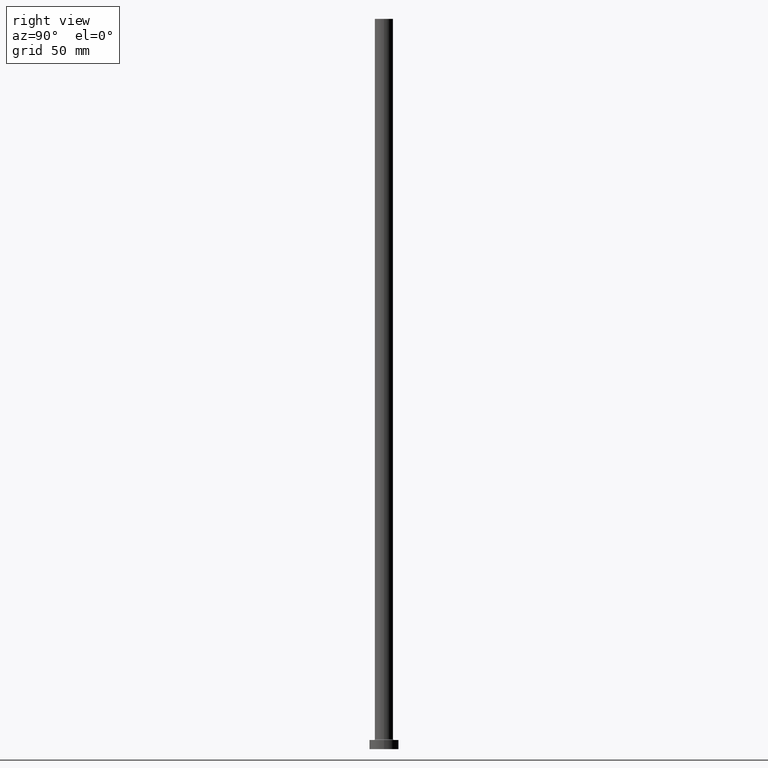
[diagram: clean part render]
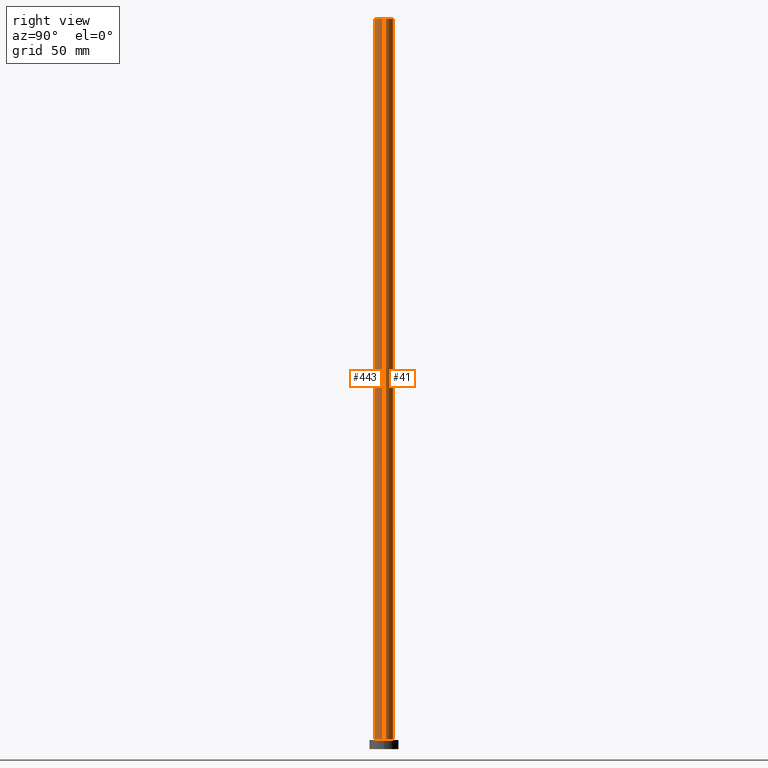
[diagram: same view with one multi-face feature highlighted, each face labeled with its STEP entity id]
A machine part, right view. The highlighted faces form ONE feature: a constant-radius fillet chain: 2 tangent blend faces with common blend radius 5 mm. The faces share edges in the B-rep.
Their STEP definitions:
[1] entity #443 (Cylinder):
#28 = LINE ( 'NONE', #265, #415 ) ;
#30 = CARTESIAN_POINT ( 'NONE',  ( 0.000000000000000000, 0.000000000000000000, 400.0000000000000000 ) ) ;
#37 = DIRECTION ( 'NONE',  ( -0.000000000000000000, -0.000000000000000000, -1.000000000000000000 ) ) ;
#54 = EDGE_CURVE ( 'NONE', #191, #219, #228, .T. ) ;
#64 = CARTESIAN_POINT ( 'NONE',  ( -5.000000000000000000, 0.000000000000000000, 5.500000000000005329 ) ) ;
#72 = VECTOR ( 'NONE', #37, 1000.000000000000000 ) ;
#93 = CARTESIAN_POINT ( 'NONE',  ( -5.000000000000000000, 0.000000000000000000, 400.0000000000000000 ) ) ;
#102 = CARTESIAN_POINT ( 'NONE',  ( 5.000000000000000000, 6.123233995736765296E-16, 5.500000000000005329 ) ) ;
#105 = CYLINDRICAL_SURFACE ( 'NONE', #345, 5.000000000000000000 ) ;
#114 = EDGE_CURVE ( 'NONE', #219, #156, #441, .T. ) ;
#119 = CARTESIAN_POINT ( 'NONE',  ( -5.000000000000000000, 0.000000000000000000, 400.0000000000000000 ) ) ;
#149 = VERTEX_POINT ( 'NONE', #346 ) ;
#151 = EDGE_CURVE ( 'NONE', #149, #156, #28, .T. ) ;
#156 = VERTEX_POINT ( 'NONE', #102 ) ;
#173 = DIRECTION ( 'NONE',  ( 0.000000000000000000, 0.000000000000000000, 1.000000000000000000 ) ) ;
#174 = FACE_OUTER_BOUND ( 'NONE', #285, .T. ) ;
#191 = VERTEX_POINT ( 'NONE', #93 ) ;
#193 = CARTESIAN_POINT ( 'NONE',  ( 0.000000000000000000, 0.000000000000000000, 5.500000000000005329 ) ) ;
#219 = VERTEX_POINT ( 'NONE', #64 ) ;
#228 = LINE ( 'NONE', #119, #72 ) ;
#261 = ORIENTED_EDGE ( 'NONE', *, *, #151, .F. ) ;
#262 = ORIENTED_EDGE ( 'NONE', *, *, #310, .F. ) ;
#265 = CARTESIAN_POINT ( 'NONE',  ( 5.000000000000000000, 6.123233995736765296E-16, 400.0000000000000000 ) ) ;
#267 = DIRECTION ( 'NONE',  ( -0.000000000000000000, -0.000000000000000000, -1.000000000000000000 ) ) ;
#285 = EDGE_LOOP ( 'NONE', ( #261, #262, #358, #404 ) ) ;
#310 = EDGE_CURVE ( 'NONE', #191, #149, #339, .T. ) ;
#315 = DIRECTION ( 'NONE',  ( -1.000000000000000000, 0.000000000000000000, 0.000000000000000000 ) ) ;
#322 = AXIS2_PLACEMENT_3D ( 'NONE', #30, #173, #349 ) ;
#339 = CIRCLE ( 'NONE', #322, 5.000000000000000000 ) ;
#342 = AXIS2_PLACEMENT_3D ( 'NONE', #193, #445, #378 ) ;
#345 = AXIS2_PLACEMENT_3D ( 'NONE', #424, #430, #315 ) ;
#346 = CARTESIAN_POINT ( 'NONE',  ( 5.000000000000000000, 6.123233995736765296E-16, 400.0000000000000000 ) ) ;
#349 = DIRECTION ( 'NONE',  ( 1.000000000000000000, 0.000000000000000000, 0.000000000000000000 ) ) ;
#358 = ORIENTED_EDGE ( 'NONE', *, *, #54, .T. ) ;
#378 = DIRECTION ( 'NONE',  ( 1.000000000000000000, 0.000000000000000000, 0.000000000000000000 ) ) ;
#404 = ORIENTED_EDGE ( 'NONE', *, *, #114, .T. ) ;
#415 = VECTOR ( 'NONE', #267, 1000.000000000000000 ) ;
#424 = CARTESIAN_POINT ( 'NONE',  ( 0.000000000000000000, 0.000000000000000000, 400.0000000000000000 ) ) ;
#430 = DIRECTION ( 'NONE',  ( -0.000000000000000000, -0.000000000000000000, -1.000000000000000000 ) ) ;
#441 = CIRCLE ( 'NONE', #342, 5.000000000000000000 ) ;
#443 = ADVANCED_FACE ( 'NONE', ( #174 ), #105, .T. ) ;
#445 = DIRECTION ( 'NONE',  ( 0.000000000000000000, 0.000000000000000000, 1.000000000000000000 ) ) ;
[2] entity #41 (Cylinder):
#12 = DIRECTION ( 'NONE',  ( -1.000000000000000000, 0.000000000000000000, 0.000000000000000000 ) ) ;
#15 = EDGE_LOOP ( 'NONE', ( #124, #215, #95, #52 ) ) ;
#23 = CARTESIAN_POINT ( 'NONE',  ( 0.000000000000000000, 0.000000000000000000, 5.500000000000005329 ) ) ;
#28 = LINE ( 'NONE', #265, #415 ) ;
#37 = DIRECTION ( 'NONE',  ( -0.000000000000000000, -0.000000000000000000, -1.000000000000000000 ) ) ;
#39 = AXIS2_PLACEMENT_3D ( 'NONE', #23, #77, #210 ) ;
#41 = ADVANCED_FACE ( 'NONE', ( #293 ), #435, .T. ) ;
#52 = ORIENTED_EDGE ( 'NONE', *, *, #54, .F. ) ;
#54 = EDGE_CURVE ( 'NONE', #191, #219, #228, .T. ) ;
#62 = DIRECTION ( 'NONE',  ( 1.000000000000000000, 0.000000000000000000, 0.000000000000000000 ) ) ;
#64 = CARTESIAN_POINT ( 'NONE',  ( -5.000000000000000000, 0.000000000000000000, 5.500000000000005329 ) ) ;
#72 = VECTOR ( 'NONE', #37, 1000.000000000000000 ) ;
#77 = DIRECTION ( 'NONE',  ( 0.000000000000000000, 0.000000000000000000, 1.000000000000000000 ) ) ;
#93 = CARTESIAN_POINT ( 'NONE',  ( -5.000000000000000000, 0.000000000000000000, 400.0000000000000000 ) ) ;
#95 = ORIENTED_EDGE ( 'NONE', *, *, #127, .T. ) ;
#102 = CARTESIAN_POINT ( 'NONE',  ( 5.000000000000000000, 6.123233995736765296E-16, 5.500000000000005329 ) ) ;
#109 = AXIS2_PLACEMENT_3D ( 'NONE', #438, #332, #12 ) ;
#119 = CARTESIAN_POINT ( 'NONE',  ( -5.000000000000000000, 0.000000000000000000, 400.0000000000000000 ) ) ;
#124 = ORIENTED_EDGE ( 'NONE', *, *, #212, .F. ) ;
#127 = EDGE_CURVE ( 'NONE', #156, #219, #407, .T. ) ;
#136 = DIRECTION ( 'NONE',  ( 0.000000000000000000, 0.000000000000000000, 1.000000000000000000 ) ) ;
#149 = VERTEX_POINT ( 'NONE', #346 ) ;
#151 = EDGE_CURVE ( 'NONE', #149, #156, #28, .T. ) ;
#156 = VERTEX_POINT ( 'NONE', #102 ) ;
#191 = VERTEX_POINT ( 'NONE', #93 ) ;
#202 = AXIS2_PLACEMENT_3D ( 'NONE', #383, #136, #62 ) ;
#210 = DIRECTION ( 'NONE',  ( 1.000000000000000000, 0.000000000000000000, 0.000000000000000000 ) ) ;
#212 = EDGE_CURVE ( 'NONE', #149, #191, #226, .T. ) ;
#215 = ORIENTED_EDGE ( 'NONE', *, *, #151, .T. ) ;
#219 = VERTEX_POINT ( 'NONE', #64 ) ;
#226 = CIRCLE ( 'NONE', #202, 5.000000000000000000 ) ;
#228 = LINE ( 'NONE', #119, #72 ) ;
#265 = CARTESIAN_POINT ( 'NONE',  ( 5.000000000000000000, 6.123233995736765296E-16, 400.0000000000000000 ) ) ;
#267 = DIRECTION ( 'NONE',  ( -0.000000000000000000, -0.000000000000000000, -1.000000000000000000 ) ) ;
#293 = FACE_OUTER_BOUND ( 'NONE', #15, .T. ) ;
#332 = DIRECTION ( 'NONE',  ( -0.000000000000000000, -0.000000000000000000, -1.000000000000000000 ) ) ;
#346 = CARTESIAN_POINT ( 'NONE',  ( 5.000000000000000000, 6.123233995736765296E-16, 400.0000000000000000 ) ) ;
#383 = CARTESIAN_POINT ( 'NONE',  ( 0.000000000000000000, 0.000000000000000000, 400.0000000000000000 ) ) ;
#407 = CIRCLE ( 'NONE', #39, 5.000000000000000000 ) ;
#415 = VECTOR ( 'NONE', #267, 1000.000000000000000 ) ;
#435 = CYLINDRICAL_SURFACE ( 'NONE', #109, 5.000000000000000000 ) ;
#438 = CARTESIAN_POINT ( 'NONE',  ( 0.000000000000000000, 0.000000000000000000, 400.0000000000000000 ) ) ;